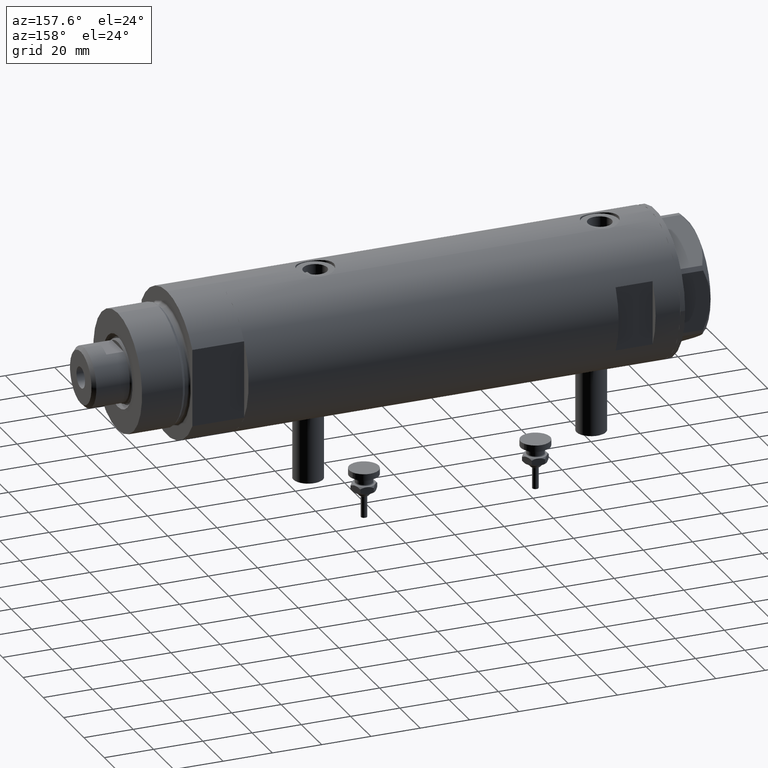
[diagram: clean part render]
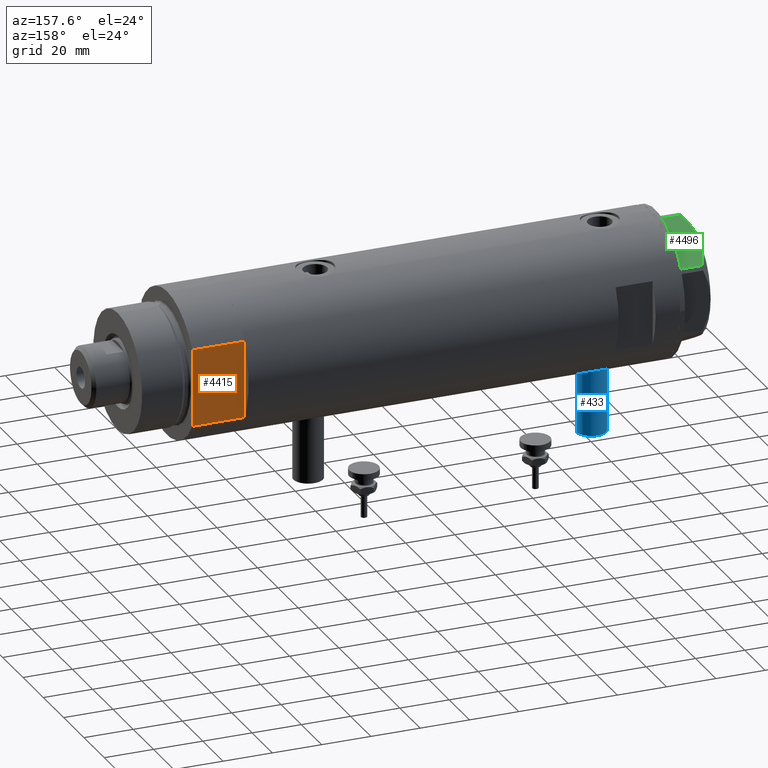
[diagram: same view with three faces highlighted in distinct colors, each labeled with its STEP entity id]
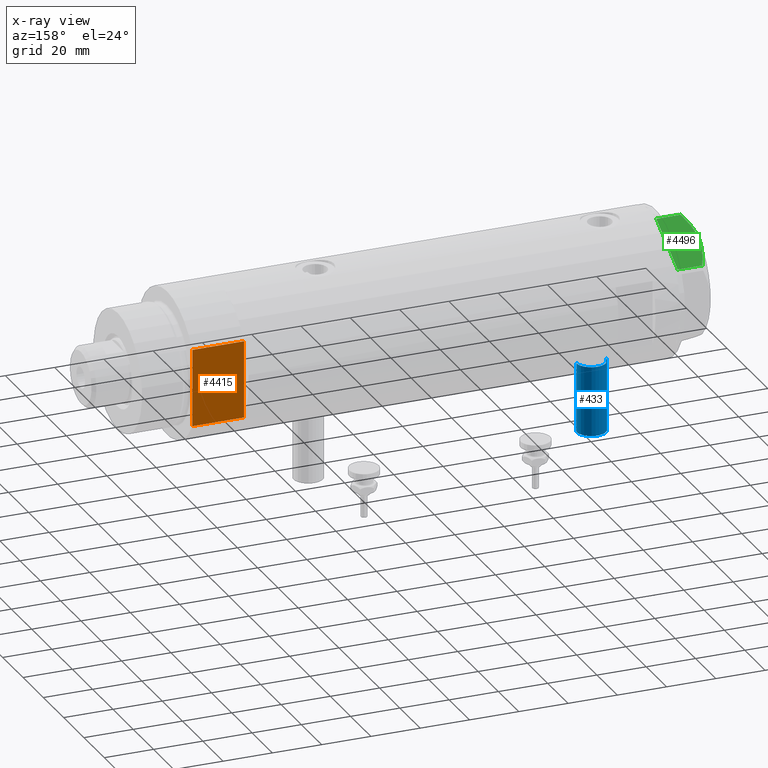
[diagram: x-ray of the same camera — body ghosted, the three highlighted faces saturated]
A machine part, auxiliary view with three faces highlighted in distinct colors.
The next image is the same camera in x-ray (body ghosted, the three faces saturated) — at least one of them is partly hidden behind the body in this view.
Their STEP definitions:

[orange] entity #4415 — the highlighted planar face has unit normal (0, -1, -0).
#143 = PLANE ( 'NONE',  #3319 ) ;
#330 = DIRECTION ( 'NONE',  ( -0.000000000000000000, -0.000000000000000000, 1.000000000000000000 ) ) ;
#399 = ORIENTED_EDGE ( 'NONE', *, *, #1564, .T. ) ;
#472 = VECTOR ( 'NONE', #3728, 1000.000000000000000 ) ;
#499 = EDGE_CURVE ( 'NONE', #3868, #1419, #2551, .T. ) ;
#507 = CARTESIAN_POINT ( 'NONE',  ( -15.66045976336583401, 25.00000000000000000, 21.00000000000000000 ) ) ;
#843 = CARTESIAN_POINT ( 'NONE',  ( -15.66045976336583401, 25.00000000000000000, 0.000000000000000000 ) ) ;
#1010 = DIRECTION ( 'NONE',  ( 0.000000000000000000, -0.000000000000000000, -1.000000000000000000 ) ) ;
#1078 = FACE_OUTER_BOUND ( 'NONE', #5446, .T. ) ;
#1142 = ORIENTED_EDGE ( 'NONE', *, *, #4232, .T. ) ;
#1144 = VERTEX_POINT ( 'NONE', #2502 ) ;
#1168 = VECTOR ( 'NONE', #3073, 1000.000000000000000 ) ;
#1392 = EDGE_CURVE ( 'NONE', #1644, #1144, #1946, .T. ) ;
#1419 = VERTEX_POINT ( 'NONE', #5129 ) ;
#1564 = EDGE_CURVE ( 'NONE', #1644, #5195, #5856, .T. ) ;
#1565 = ORIENTED_EDGE ( 'NONE', *, *, #1590, .F. ) ;
#1590 = EDGE_CURVE ( 'NONE', #1144, #3665, #4916, .T. ) ;
#1644 = VERTEX_POINT ( 'NONE', #3626 ) ;
#1789 = DIRECTION ( 'NONE',  ( 1.000000000000000000, 0.000000000000000000, 0.000000000000000000 ) ) ;
#1850 = LINE ( 'NONE', #4519, #472 ) ;
#1883 = CARTESIAN_POINT ( 'NONE',  ( -15.66045976336583401, 25.00000000000000000, 0.000000000000000000 ) ) ;
#1923 = VECTOR ( 'NONE', #330, 1000.000000000000000 ) ;
#1946 = LINE ( 'NONE', #1883, #5483 ) ;
#1965 = CARTESIAN_POINT ( 'NONE',  ( -15.66045976336583401, 25.00000000000000000, 0.000000000000000000 ) ) ;
#2241 = CARTESIAN_POINT ( 'NONE',  ( -15.66045976336583401, 25.00000000000000000, 0.000000000000000000 ) ) ;
#2267 = CARTESIAN_POINT ( 'NONE',  ( -15.66045976336583045, 24.99999999999999645, 21.00000000000000355 ) ) ;
#2290 = LINE ( 'NONE', #507, #4373 ) ;
#2502 = CARTESIAN_POINT ( 'NONE',  ( -7.141428428542853091, 25.00000000000000000, 0.000000000000000000 ) ) ;
#2551 = LINE ( 'NONE', #2614, #5192 ) ;
#2561 = ORIENTED_EDGE ( 'NONE', *, *, #1392, .F. ) ;
#2614 = CARTESIAN_POINT ( 'NONE',  ( 15.66045976336583401, 25.00000000000000000, 0.000000000000000000 ) ) ;
#2794 = DIRECTION ( 'NONE',  ( 1.000000000000000000, 0.000000000000000000, 0.000000000000000000 ) ) ;
#3073 = DIRECTION ( 'NONE',  ( 1.000000000000000000, 0.000000000000000000, 0.000000000000000000 ) ) ;
#3319 = AXIS2_PLACEMENT_3D ( 'NONE', #1965, #4179, #1010 ) ;
#3610 = CARTESIAN_POINT ( 'NONE',  ( 7.141428428542853091, 25.00000000000000000, 0.000000000000000000 ) ) ;
#3626 = CARTESIAN_POINT ( 'NONE',  ( -15.66045976336583401, 25.00000000000000000, 0.000000000000000000 ) ) ;
#3665 = VERTEX_POINT ( 'NONE', #3610 ) ;
#3718 = CARTESIAN_POINT ( 'NONE',  ( 15.66045976336582690, 25.00000000000000000, 0.000000000000000000 ) ) ;
#3728 = DIRECTION ( 'NONE',  ( 1.000000000000000000, 0.000000000000000000, 0.000000000000000000 ) ) ;
#3868 = VERTEX_POINT ( 'NONE', #3718 ) ;
#3879 = ORIENTED_EDGE ( 'NONE', *, *, #5467, .F. ) ;
#4028 = ORIENTED_EDGE ( 'NONE', *, *, #499, .F. ) ;
#4179 = DIRECTION ( 'NONE',  ( 0.000000000000000000, -1.000000000000000000, 0.000000000000000000 ) ) ;
#4232 = EDGE_CURVE ( 'NONE', #5195, #1419, #2290, .T. ) ;
#4373 = VECTOR ( 'NONE', #1789, 1000.000000000000000 ) ;
#4415 = ADVANCED_FACE ( 'NONE', ( #1078 ), #143, .F. ) ;
#4519 = CARTESIAN_POINT ( 'NONE',  ( -15.66045976336583401, 25.00000000000000000, 0.000000000000000000 ) ) ;
#4881 = DIRECTION ( 'NONE',  ( -0.000000000000000000, -0.000000000000000000, 1.000000000000000000 ) ) ;
#4916 = LINE ( 'NONE', #2241, #1168 ) ;
#5129 = CARTESIAN_POINT ( 'NONE',  ( 15.66045976336583045, 24.99999999999999645, 20.99999999999999645 ) ) ;
#5192 = VECTOR ( 'NONE', #4881, 1000.000000000000000 ) ;
#5195 = VERTEX_POINT ( 'NONE', #2267 ) ;
#5446 = EDGE_LOOP ( 'NONE', ( #1142, #4028, #3879, #1565, #2561, #399 ) ) ;
#5467 = EDGE_CURVE ( 'NONE', #3665, #3868, #1850, .T. ) ;
#5483 = VECTOR ( 'NONE', #2794, 1000.000000000000000 ) ;
#5856 = LINE ( 'NONE', #843, #1923 ) ;

[blue] entity #433 — the highlighted cylindrical surface (edge-blend (fillet) strip) has radius 6 mm, axis along (0, 0, 1).
#126 = EDGE_LOOP ( 'NONE', ( #2946, #5316, #3986, #277 ) ) ;
#170 = CARTESIAN_POINT ( 'NONE',  ( -56.60000000000000142, 0.000000000000000000, 57.60000000000000142 ) ) ;
#277 = ORIENTED_EDGE ( 'NONE', *, *, #3546, .F. ) ;
#365 = CIRCLE ( 'NONE', #5055, 5.999999999999991118 ) ;
#433 = ADVANCED_FACE ( 'NONE', ( #3922 ), #1052, .T. ) ;
#454 = VECTOR ( 'NONE', #4276, 1000.000000000000000 ) ;
#1052 = CYLINDRICAL_SURFACE ( 'NONE', #4611, 5.999999999999991118 ) ;
#1522 = CARTESIAN_POINT ( 'NONE',  ( -28.30000000000000071, 0.000000000000000000, 57.60000000000000142 ) ) ;
#1871 = CARTESIAN_POINT ( 'NONE',  ( -56.60000000000000142, 0.000000000000000000, 63.59999999999998721 ) ) ;
#2004 = VERTEX_POINT ( 'NONE', #2116 ) ;
#2076 = DIRECTION ( 'NONE',  ( 1.000000000000000000, -0.000000000000000000, -0.000000000000000000 ) ) ;
#2116 = CARTESIAN_POINT ( 'NONE',  ( -56.60000000000000142, 0.000000000000000000, 57.60000000000000142 ) ) ;
#2180 = AXIS2_PLACEMENT_3D ( 'NONE', #2931, #3516, #3487 ) ;
#2268 = CIRCLE ( 'NONE', #2180, 5.999999999999991118 ) ;
#2931 = CARTESIAN_POINT ( 'NONE',  ( -28.30000000000000071, 0.000000000000000000, 63.59999999999998721 ) ) ;
#2946 = ORIENTED_EDGE ( 'NONE', *, *, #4342, .F. ) ;
#2982 = EDGE_CURVE ( 'NONE', #5457, #3133, #5240, .T. ) ;
#3133 = VERTEX_POINT ( 'NONE', #5791 ) ;
#3314 = CARTESIAN_POINT ( 'NONE',  ( -56.60000000000000142, 0.000000000000000000, 63.59999999999998721 ) ) ;
#3432 = CARTESIAN_POINT ( 'NONE',  ( -56.60000000000000142, 7.347880794884104945E-16, 69.59999999999998010 ) ) ;
#3487 = DIRECTION ( 'NONE',  ( 0.000000000000000000, 0.000000000000000000, 1.000000000000000000 ) ) ;
#3516 = DIRECTION ( 'NONE',  ( -1.000000000000000000, 0.000000000000000000, 0.000000000000000000 ) ) ;
#3546 = EDGE_CURVE ( 'NONE', #2004, #4424, #3851, .T. ) ;
#3701 = DIRECTION ( 'NONE',  ( -1.000000000000000000, 0.000000000000000000, 0.000000000000000000 ) ) ;
#3797 = DIRECTION ( 'NONE',  ( 0.000000000000000000, 0.000000000000000000, -1.000000000000000000 ) ) ;
#3851 = LINE ( 'NONE', #170, #4278 ) ;
#3922 = FACE_OUTER_BOUND ( 'NONE', #126, .T. ) ;
#3986 = ORIENTED_EDGE ( 'NONE', *, *, #4488, .T. ) ;
#4276 = DIRECTION ( 'NONE',  ( 1.000000000000000000, -0.000000000000000000, -0.000000000000000000 ) ) ;
#4278 = VECTOR ( 'NONE', #2076, 1000.000000000000000 ) ;
#4342 = EDGE_CURVE ( 'NONE', #5457, #2004, #365, .T. ) ;
#4424 = VERTEX_POINT ( 'NONE', #1522 ) ;
#4488 = EDGE_CURVE ( 'NONE', #3133, #4424, #2268, .T. ) ;
#4611 = AXIS2_PLACEMENT_3D ( 'NONE', #3314, #5672, #3797 ) ;
#5055 = AXIS2_PLACEMENT_3D ( 'NONE', #1871, #3701, #5544 ) ;
#5240 = LINE ( 'NONE', #3432, #454 ) ;
#5316 = ORIENTED_EDGE ( 'NONE', *, *, #2982, .T. ) ;
#5457 = VERTEX_POINT ( 'NONE', #5545 ) ;
#5544 = DIRECTION ( 'NONE',  ( 0.000000000000000000, 0.000000000000000000, 1.000000000000000000 ) ) ;
#5545 = CARTESIAN_POINT ( 'NONE',  ( -56.60000000000000142, 7.347880794884101001E-16, 69.59999999999998010 ) ) ;
#5672 = DIRECTION ( 'NONE',  ( 1.000000000000000000, -0.000000000000000000, -0.000000000000000000 ) ) ;
#5791 = CARTESIAN_POINT ( 'NONE',  ( -28.30000000000000071, 7.347880794884101001E-16, 69.59999999999998010 ) ) ;

[green] entity #4496 — the highlighted planar face has unit normal (-0, -0.5, -0.866).
#36 = CARTESIAN_POINT ( 'NONE',  ( 21.20080365460329475, -14.31782268570100491, 10.43131750950939107 ) ) ;
#87 = CARTESIAN_POINT ( 'NONE',  ( 22.03005154776154129, -13.83905619136115384, 9.983800287807621743 ) ) ;
#148 = CARTESIAN_POINT ( 'NONE',  ( 18.64279229058406173, -15.79469123530766517, 11.57055225522972286 ) ) ;
#378 = CARTESIAN_POINT ( 'NONE',  ( 2.626494320835804253, -25.04170517956326236, 10.87778242614345636 ) ) ;
#431 = VERTEX_POINT ( 'NONE', #4796 ) ;
#512 = CARTESIAN_POINT ( 'NONE',  ( 15.11535457301044616, -17.83125835109845880, 12.70765172847700342 ) ) ;
#776 = CARTESIAN_POINT ( 'NONE',  ( 4.320186229910045306, -24.06385169993492568, 11.62937486882610649 ) ) ;
#993 = CARTESIAN_POINT ( 'NONE',  ( 17.32831362639728923, -16.55360584591992890, 12.04068176582933525 ) ) ;
#1137 = ORIENTED_EDGE ( 'NONE', *, *, #1931, .F. ) ;
#1347 = LINE ( 'NONE', #3184, #1456 ) ;
#1456 = VECTOR ( 'NONE', #3272, 999.9999999999998863 ) ;
#1545 = VECTOR ( 'NONE', #3112, 1000.000000000000000 ) ;
#1685 = CARTESIAN_POINT ( 'NONE',  ( 0.9699484522387532559, -25.99811238272273428, 13.00000000000000000 ) ) ;
#1911 = CARTESIAN_POINT ( 'NONE',  ( 13.32175508098997518, -18.86679350063487703, 13.00000000000009059 ) ) ;
#1931 = EDGE_CURVE ( 'NONE', #4386, #431, #4425, .T. ) ;
#2050 = DIRECTION ( 'NONE',  ( -0.8660254037844345998, -0.5000000000000069944, 0.000000000000000000 ) ) ;
#2107 = EDGE_CURVE ( 'NONE', #5328, #4224, #1347, .T. ) ;
#2150 = B_SPLINE_CURVE_WITH_KNOTS ( 'NONE', 3,
 ( #2844, #1911, #512, #993, #2319, #148, #2790, #4640, #36, #87 ),
 .UNSPECIFIED., .F., .F.,
 ( 4, 2, 2, 2, 4 ),
 ( 0.01376519981810312224, 0.01998941321701590279, 0.02154546656674409533, 0.02310151991647228786, 0.02621362661592867294 ),
 .UNSPECIFIED. ) ;
#2204 = CARTESIAN_POINT ( 'NONE',  ( 11.50000000000018296, -19.91858428704203732, 13.00000000000000000 ) ) ;
#2217 = CARTESIAN_POINT ( 'NONE',  ( 22.03005154776153773, -13.83905619136115739, 13.00000000000000000 ) ) ;
#2314 = EDGE_CURVE ( 'NONE', #4386, #5328, #3997, .T. ) ;
#2319 = CARTESIAN_POINT ( 'NONE',  ( 17.77001848220202618, -16.29858742851869735, 11.89212886775844780 ) ) ;
#2544 = CARTESIAN_POINT ( 'NONE',  ( 6.946777556903778184, -22.54738849024392877, 12.42689993760377654 ) ) ;
#2578 = CARTESIAN_POINT ( 'NONE',  ( 10.58093321976977030, -20.44920774001120023, 12.98168640760949799 ) ) ;
#2670 = CARTESIAN_POINT ( 'NONE',  ( 7.836767740116727943, -22.03355241838979595, 12.63731396715694544 ) ) ;
#2755 = CARTESIAN_POINT ( 'NONE',  ( 22.03005154776153773, -13.83905619136115561, 0.000000000000000000 ) ) ;
#2790 = CARTESIAN_POINT ( 'NONE',  ( 19.07486218897005870, -15.54523556316577171, 11.39727285399141365 ) ) ;
#2844 = CARTESIAN_POINT ( 'NONE',  ( 11.50000000000018296, -19.91858428704203732, 13.00000000000000000 ) ) ;
#2928 = EDGE_CURVE ( 'NONE', #431, #5059, #2150, .T. ) ;
#2995 = CARTESIAN_POINT ( 'NONE',  ( 1.854543075583504180E-13, -26.55811238272274366, 13.00000000000000000 ) ) ;
#3112 = DIRECTION ( 'NONE',  ( 0.000000000000000000, 0.000000000000000000, -1.000000000000000000 ) ) ;
#3184 = CARTESIAN_POINT ( 'NONE',  ( 1.854543075583504180E-13, -26.55811238272274366, 0.000000000000000000 ) ) ;
#3272 = DIRECTION ( 'NONE',  ( 0.8660254037844345998, 0.5000000000000069944, 0.000000000000000000 ) ) ;
#3552 = PLANE ( 'NONE',  #5734 ) ;
#3588 = CARTESIAN_POINT ( 'NONE',  ( 9.656518383329991906, -20.98291889467260773, 12.90784227772843451 ) ) ;
#3613 = EDGE_LOOP ( 'NONE', ( #1137, #4324, #5140, #5572, #4925 ) ) ;
#3875 = DIRECTION ( 'NONE',  ( 0.000000000000000000, 0.000000000000000000, 1.000000000000000000 ) ) ;
#3971 = FACE_OUTER_BOUND ( 'NONE', #3613, .T. ) ;
#3997 = LINE ( 'NONE', #1685, #1545 ) ;
#4224 = VERTEX_POINT ( 'NONE', #2755 ) ;
#4324 = ORIENTED_EDGE ( 'NONE', *, *, #2314, .T. ) ;
#4386 = VERTEX_POINT ( 'NONE', #5599 ) ;
#4425 = B_SPLINE_CURVE_WITH_KNOTS ( 'NONE', 3,
 ( #4877, #378, #776, #2544, #2670, #4910, #3588, #2578, #4937, #2204 ),
 .UNSPECIFIED., .F., .F.,
 ( 4, 2, 2, 2, 4 ),
 ( 0.001228959670438509785, 0.007497079744270810156, 0.01063113978118696706, 0.01219816979964504465, 0.01376519981810312224 ),
 .UNSPECIFIED. ) ;
#4486 = VECTOR ( 'NONE', #3875, 1000.000000000000000 ) ;
#4496 = ADVANCED_FACE ( 'NONE', ( #3971 ), #3552, .F. ) ;
#4640 = CARTESIAN_POINT ( 'NONE',  ( 20.35958612119338085, -14.80349985506226673, 10.84420102443838552 ) ) ;
#4796 = CARTESIAN_POINT ( 'NONE',  ( 11.50000000000018296, -19.91858428704203732, 13.00000000000000000 ) ) ;
#4874 = DIRECTION ( 'NONE',  ( -0.5000000000000069944, 0.8660254037844345998, 0.000000000000000000 ) ) ;
#4877 = CARTESIAN_POINT ( 'NONE',  ( 0.9699484522386113694, -25.99811238272281955, 9.983800287807545359 ) ) ;
#4910 = CARTESIAN_POINT ( 'NONE',  ( 9.197898616903064095, -21.24770314027487927, 12.85271263895580240 ) ) ;
#4925 = ORIENTED_EDGE ( 'NONE', *, *, #2928, .F. ) ;
#4937 = CARTESIAN_POINT ( 'NONE',  ( 11.04134848610952879, -20.18338686205092358, 13.00000000000009059 ) ) ;
#4946 = LINE ( 'NONE', #2217, #4486 ) ;
#4977 = EDGE_CURVE ( 'NONE', #4224, #5059, #4946, .T. ) ;
#4980 = CARTESIAN_POINT ( 'NONE',  ( 22.03005154776154129, -13.83905619136115384, 9.983800287807621743 ) ) ;
#5059 = VERTEX_POINT ( 'NONE', #4980 ) ;
#5140 = ORIENTED_EDGE ( 'NONE', *, *, #2107, .T. ) ;
#5328 = VERTEX_POINT ( 'NONE', #5763 ) ;
#5572 = ORIENTED_EDGE ( 'NONE', *, *, #4977, .T. ) ;
#5599 = CARTESIAN_POINT ( 'NONE',  ( 0.9699484522386113694, -25.99811238272281955, 9.983800287807545359 ) ) ;
#5734 = AXIS2_PLACEMENT_3D ( 'NONE', #2995, #4874, #2050 ) ;
#5763 = CARTESIAN_POINT ( 'NONE',  ( 0.9699484522387533669, -25.99811238272273428, 0.000000000000000000 ) ) ;